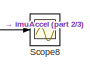
[diagram: root canvas - part 1/3, top center region]
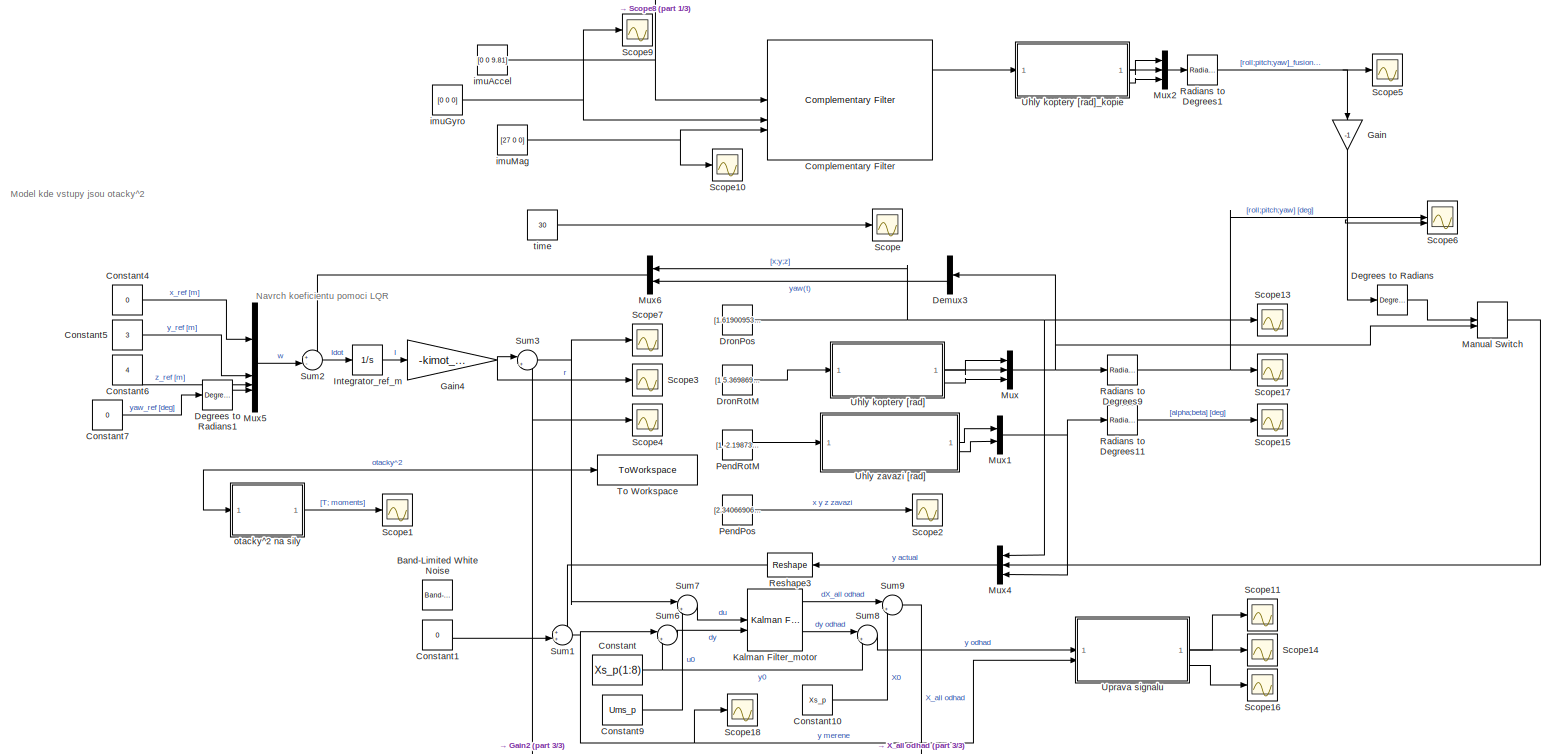
[diagram: root canvas - part 2/3, most of the canvas]
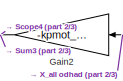
[diagram: root canvas - part 3/3, bottom center region]
MODEL slx_fc65d05edd1f
KIND model
CONFIG AbsTol = auto
CONFIG EnableMultiTasking = off
CONFIG FixedStep = 0.05
CONFIG MaxStep = auto
CONFIG MinStep = auto
CONFIG RelTol = 1e-3
CONFIG SampleTimeConstraint = Unconstrained
CONFIG SolverName = FixedStepAuto
CONFIG StartTime = 0.0
CONFIG StopTime = 30
BLOCK [Reference] Band-Limited White Noise  REF=simulink/Sources/Band-Limited
White Noise
  SourceBlock = simulink/Sources/Band-Limited\nWhite Noise
  SourceType = Band-Limited White Noise.
BLOCK [Reference] Complementary Filter  REF=mspfiltlib/Complementary Filter
  SourceBlock = mspfiltlib/Complementary Filter
  SourceType = fusion.internal.simulink.complementaryFilter
BLOCK [Constant] Constant
  Value = Xs_p(1:8)
BLOCK [Constant] Constant1
  Value = 0
BLOCK [Constant] Constant10
  Value = Xs_p
BLOCK [Constant] Constant4
  Value = 0
BLOCK [Constant] Constant5
  Value = 3
BLOCK [Constant] Constant6
  Value = 4
BLOCK [Constant] Constant7
  Value = 0
BLOCK [Constant] Constant9
  Value = Ums_p
BLOCK [Reference] Degrees to Radians  REF=simulink_extras/Transformations/Degrees to
Radians
  SourceBlock = simulink_extras/Transformations/Degrees to\nRadians
  SourceType = DegreesToRadians
BLOCK [Reference] Degrees to Radians1  REF=simulink_extras/Transformations/Degrees to
Radians
  SourceBlock = simulink_extras/Transformations/Degrees to\nRadians
  SourceType = DegreesToRadians
BLOCK [Demux] Demux3
  Outputs = 3
BLOCK [Constant] DronPos
  SampleTime = -1
  Value = [1.61900953117134e-14;2.99999981270685;3.99979077838286]
BLOCK [Constant] DronRotM
  SampleTime = -1
  Value = [1 5.3698699504956e-16 -1.69596969988384e-15;-5.36986885344199e-16 0.999999999999998 6.46859196049886e-08;1.69596973461933e-15 -6.46859196049886e-08 0.999999999999998]
BLOCK [Gain] Gain
  Gain = -1
  NameLocation = left
BLOCK [Gain] Gain2
  Gain = -kpmot_lqr
  Multiplication = Matrix(K*u)
BLOCK [Gain] Gain4
  Gain = -kimot_lqr
  Multiplication = Matrix(K*u)
BLOCK [Integrator] Integrator_ref_m
  InitialCondition = [1.54346369058432e-13;3.91010801614727e-12;-37.6161056972213;-9.51802609193794e-14]
BLOCK [Reference] Kalman Filter_motor  REF=ctrlSharedLib/Kalman Filter
  LibrarySourceBlock = cstblocks/State Estimation/Kalman Filter
  SourceBlock = ctrlSharedLib/Kalman Filter
  SourceType = ctrlKalmanFilter
BLOCK [ManualSwitch] Manual Switch
  CurrentSetting = 0
BLOCK [Mux] Mux
  DisplayOption = bar
  Inputs = 3
BLOCK [Mux] Mux1
  DisplayOption = bar
  Inputs = 2
BLOCK [Mux] Mux2
  DisplayOption = bar
  Inputs = 3
BLOCK [Mux] Mux4
  DisplayOption = bar
  Inputs = 3
BLOCK [Mux] Mux5
  DisplayOption = bar
BLOCK [Mux] Mux6
  DisplayOption = bar
  Inputs = 2
BLOCK [Constant] PendPos
  SampleTime = -1
  Value = [2.34066906770581e-14;2.99999974738107;2.99979077838286]
BLOCK [Constant] PendRotM
  SampleTime = -1
  Value = [1 -2.19873965405421e-16 -7.21659536534467e-15;2.19874436835105e-16 0.999999999999998 6.53257748572081e-08;7.21659535098121e-15 -6.53257748572081e-08 0.999999999999998]
BLOCK [Reference] Radians to Degrees1  REF=simulink_extras/Transformations/Radians
to Degrees
  SourceBlock = simulink_extras/Transformations/Radians\nto Degrees
  SourceType = RadiansToDegrees
BLOCK [Reference] Radians to Degrees11  REF=simulink_extras/Transformations/Radians
to Degrees
  SourceBlock = simulink_extras/Transformations/Radians\nto Degrees
  SourceType = RadiansToDegrees
BLOCK [Reference] Radians to Degrees9  REF=simulink_extras/Transformations/Radians
to Degrees
  SourceBlock = simulink_extras/Transformations/Radians\nto Degrees
  SourceType = RadiansToDegrees
BLOCK [Reshape] Reshape3
  OutputDimensionality = Customize
  OutputDimensions = [8,1]
BLOCK [Scope] Scope
  Floating = off
  NumInputPorts = 1
  ScopeSpecificationString = Simulink.scopes.TimeScopeBlockCfg('CurrentConfiguration', extmgr.ConfigurationSet(extmgr.Configuration('Core','General UI',true),extmgr.Configuration('Core','Source UI',true),extmgr.Configuration('Sources','WiredSimulink',true,'DataLoggingVariableName','ScopeData1'),extmgr.Configuration('Visuals','Time Domain',true,'SerializedDisplays',{struct('MinYLimReal','-0.44909','MaxYLimReal','0.69951','YLab...<+1525ch>
BLOCK [Scope] Scope1
  Floating = off
  NumInputPorts = 1
  ScopeSpecificationString = Simulink.scopes.TimeScopeBlockCfg('CurrentConfiguration', extmgr.ConfigurationSet(extmgr.Configuration('Core','General UI',true),extmgr.Configuration('Core','Source UI',true),extmgr.Configuration('Sources','WiredSimulink',true,'DataLoggingVariableName','ScopeData1'),extmgr.Configuration('Visuals','Time Domain',true,'SerializedDisplays',{struct('MinYLimReal','-3.78426','MaxYLimReal','33.9813','YLab...<+1586ch>
BLOCK [Scope] Scope10
  Floating = off
  NumInputPorts = 1
  ScopeSpecificationString = Simulink.scopes.TimeScopeBlockCfg('CurrentConfiguration', extmgr.ConfigurationSet(extmgr.Configuration('Core','General UI',true),extmgr.Configuration('Core','Source UI',true),extmgr.Configuration('Sources','WiredSimulink',true,'DataLoggingVariableName','ScopeData1'),extmgr.Configuration('Visuals','Time Domain',true,'SerializedDisplays',{struct('MinYLimReal','-3.375','MaxYLimReal','30.375','YLabelR...<+1495ch>
BLOCK [Scope] Scope11
  Floating = off
  NumInputPorts = 1
  ScopeSpecificationString = Simulink.scopes.TimeScopeBlockCfg('CurrentConfiguration', extmgr.ConfigurationSet(extmgr.Configuration('Core','General UI',true),extmgr.Configuration('Core','Source UI',true),extmgr.Configuration('Sources','WiredSimulink',true,'DataLoggingVariableName','ScopeData1'),extmgr.Configuration('Visuals','Time Domain',true,'SerializedDisplays',{struct('MinYLimReal','-0.50004','MaxYLimReal','4.49977','YLab...<+1790ch>
BLOCK [Scope] Scope13
  Floating = off
  NumInputPorts = 1
  ScopeSpecificationString = Simulink.scopes.TimeScopeBlockCfg('CurrentConfiguration', extmgr.ConfigurationSet(extmgr.Configuration('Core','General UI',true,'FigureColor',[1 1 1]),extmgr.Configuration('Core','Source UI',true),extmgr.Configuration('Sources','WiredSimulink',true,'DataLoggingVariableName','ScopeData2'),extmgr.Configuration('Visuals','Time Domain',true,'SerializedDisplays',{struct('MinYLimReal','-0.49997','MaxYLi...<+1879ch>
BLOCK [Scope] Scope14
  Floating = off
  NumInputPorts = 1
  ScopeSpecificationString = Simulink.scopes.TimeScopeBlockCfg('CurrentConfiguration', extmgr.ConfigurationSet(extmgr.Configuration('Core','General UI',true),extmgr.Configuration('Core','Source UI',true),extmgr.Configuration('Sources','WiredSimulink',true,'DataLoggingVariableName','ScopeData3'),extmgr.Configuration('Visuals','Time Domain',true,'SerializedDisplays',{struct('MinYLimReal','-10.3275','MaxYLimReal','7.36251','YLab...<+1779ch>
BLOCK [Scope] Scope15
  Floating = off
  NumInputPorts = 1
  ScopeSpecificationString = Simulink.scopes.TimeScopeBlockCfg('CurrentConfiguration', extmgr.ConfigurationSet(extmgr.Configuration('Core','General UI',true,'FigureColor',[1 1 1]),extmgr.Configuration('Core','Source UI',true),extmgr.Configuration('Sources','WiredSimulink',true,'DataLoggingVariableName','ScopeData4'),extmgr.Configuration('Visuals','Time Domain',true,'SerializedDisplays',{struct('MinYLimReal','-4.14198','MaxYLi...<+1889ch>
BLOCK [Scope] Scope16
  Floating = off
  NumInputPorts = 1
  ScopeSpecificationString = Simulink.scopes.TimeScopeBlockCfg('CurrentConfiguration', extmgr.ConfigurationSet(extmgr.Configuration('Core','General UI',true),extmgr.Configuration('Core','Source UI',true),extmgr.Configuration('Sources','WiredSimulink',true,'DataLoggingVariableName','ScopeData5'),extmgr.Configuration('Visuals','Time Domain',true,'SerializedDisplays',{struct('MinYLimReal','-5.12778','MaxYLimReal','7.11285','YLab...<+1672ch>
BLOCK [Scope] Scope17
  Floating = off
  NumInputPorts = 1
  ScopeSpecificationString = Simulink.scopes.TimeScopeBlockCfg('CurrentConfiguration', extmgr.ConfigurationSet(extmgr.Configuration('Core','General UI',true,'FigureColor',[1 1 1]),extmgr.Configuration('Core','Source UI',true),extmgr.Configuration('Sources','WiredSimulink',true,'DataLoggingVariableName','ScopeData6'),extmgr.Configuration('Visuals','Time Domain',true,'SerializedDisplays',{struct('MinYLimReal','-3.95864','MaxYLi...<+1924ch>
BLOCK [Scope] Scope18
  Floating = off
  NumInputPorts = 1
  ScopeSpecificationString = Simulink.scopes.TimeScopeBlockCfg('CurrentConfiguration', extmgr.ConfigurationSet(extmgr.Configuration('Core','General UI',true),extmgr.Configuration('Core','Source UI',true),extmgr.Configuration('Sources','WiredSimulink',true,'DataLoggingVariableName','ScopeData1'),extmgr.Configuration('Visuals','Time Domain',true,'SerializedDisplays',{struct('MinYLimReal','-11.22065','MaxYLimReal','3.49149','YLa...<+1626ch>
BLOCK [Scope] Scope2
  Floating = off
  NumInputPorts = 1
  ScopeSpecificationString = Simulink.scopes.TimeScopeBlockCfg('CurrentConfiguration', extmgr.ConfigurationSet(extmgr.Configuration('Core','General UI',true),extmgr.Configuration('Core','Source UI',true),extmgr.Configuration('Sources','WiredSimulink',true,'DataLoggingVariableName','ScopeData2'),extmgr.Configuration('Visuals','Time Domain',true,'SerializedDisplays',{struct('MinYLimReal','-0.50305','MaxYLimReal','2.5302','YLabe...<+1997ch>
BLOCK [Scope] Scope3
  Floating = off
  NumInputPorts = 1
  ScopeSpecificationString = Simulink.scopes.TimeScopeBlockCfg('CurrentConfiguration', extmgr.ConfigurationSet(extmgr.Configuration('Core','General UI',true),extmgr.Configuration('Core','Source UI',true),extmgr.Configuration('Sources','WiredSimulink',true,'DataLoggingVariableName','ScopeData1'),extmgr.Configuration('Visuals','Time Domain',true,'SerializedDisplays',{struct('MinYLimReal','3939.50271','MaxYLimReal','4075.14668',...<+1653ch>
BLOCK [Scope] Scope4
  Floating = off
  NumInputPorts = 1
  ScopeSpecificationString = Simulink.scopes.TimeScopeBlockCfg('CurrentConfiguration', extmgr.ConfigurationSet(extmgr.Configuration('Core','General UI',true),extmgr.Configuration('Core','Source UI',true),extmgr.Configuration('Sources','WiredSimulink',true,'DataLoggingVariableName','ScopeData1'),extmgr.Configuration('Visuals','Time Domain',true,'SerializedDisplays',{struct('MinYLimReal','-2917.25154','MaxYLimReal','3007.03814'...<+1532ch>
BLOCK [Scope] Scope5
  Floating = off
  NumInputPorts = 1
  ScopeSpecificationString = Simulink.scopes.TimeScopeBlockCfg('CurrentConfiguration', extmgr.ConfigurationSet(extmgr.Configuration('Core','General UI',true,'FigureColor',[1 1 1]),extmgr.Configuration('Core','Source UI',true),extmgr.Configuration('Sources','WiredSimulink',true,'DataLoggingVariableName','ScopeData1'),extmgr.Configuration('Visuals','Time Domain',true,'SerializedDisplays',{struct('MinYLimReal','-5.42609','MaxYLi...<+1945ch>
BLOCK [Scope] Scope6
  Floating = off
  NumInputPorts = 2
  ScopeSpecificationString = Simulink.scopes.TimeScopeBlockCfg('CurrentConfiguration', extmgr.ConfigurationSet(extmgr.Configuration('Core','General UI',true),extmgr.Configuration('Core','Source UI',true),extmgr.Configuration('Sources','WiredSimulink',true,'DataLoggingVariableName','ScopeData2'),extmgr.Configuration('Visuals','Time Domain',true,'SerializedDisplays',{struct('MinYLimReal','-3.78503','MaxYLimReal','2.86566','YLab...<+1761ch>
BLOCK [Scope] Scope7
  Floating = off
  NumInputPorts = 1
  ScopeSpecificationString = Simulink.scopes.TimeScopeBlockCfg('CurrentConfiguration', extmgr.ConfigurationSet(extmgr.Configuration('Core','General UI',true),extmgr.Configuration('Core','Source UI',true),extmgr.Configuration('Sources','WiredSimulink',true,'DataLoggingVariableName','ScopeData7'),extmgr.Configuration('Visuals','Time Domain',true,'SerializedDisplays',{struct('MinYLimReal','3150.40517','MaxYLimReal','3299.69541',...<+1795ch>
BLOCK [Scope] Scope8
  Floating = off
  NumInputPorts = 1
  ScopeSpecificationString = Simulink.scopes.TimeScopeBlockCfg('CurrentConfiguration', extmgr.ConfigurationSet(extmgr.Configuration('Core','General UI',true),extmgr.Configuration('Core','Source UI',true),extmgr.Configuration('Sources','WiredSimulink',true,'DataLoggingVariableName','ScopeData1'),extmgr.Configuration('Visuals','Time Domain',true,'SerializedDisplays',{struct('MinYLimReal','-1.32374','MaxYLimReal','11.33768','YLa...<+1488ch>
BLOCK [Scope] Scope9
  Floating = off
  NumInputPorts = 1
  ScopeSpecificationString = Simulink.scopes.TimeScopeBlockCfg('CurrentConfiguration', extmgr.ConfigurationSet(extmgr.Configuration('Core','General UI',true),extmgr.Configuration('Core','Source UI',true),extmgr.Configuration('Sources','WiredSimulink',true,'DataLoggingVariableName','ScopeData1'),extmgr.Configuration('Visuals','Time Domain',true,'SerializedDisplays',{struct('MinYLimReal','-0.16682','MaxYLimReal','0.12672','YLab...<+1506ch>
BLOCK [Sum] Sum1
  Inputs = ++|
BLOCK [Sum] Sum2
  Inputs = +-|
BLOCK [Sum] Sum3
  Inputs = |++
BLOCK [Sum] Sum6
  Inputs = |+-
BLOCK [Sum] Sum7
  Inputs = |+-
BLOCK [Sum] Sum8
  Inputs = |++
BLOCK [Sum] Sum9
  Inputs = |++
BLOCK [ToWorkspace] To Workspace
  FixptAsFi = on
  MaxDataPoints = inf
  SampleTime = -1
  VariableName = Rotor_RPS_square
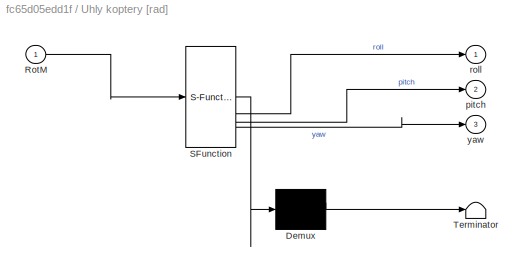
BLOCK [SubSystem] Uhly koptery [rad]
  ErrorFcn = Stateflow.Translate.translate
  PermitHierarchicalResolution = ExplicitOnly
  SFBlockType = MATLAB Function
  TreatAsAtomicUnit = on
BLOCK [Demux] Uhly koptery [rad]/ Demux 
  Outputs = 1
BLOCK [S-Function] Uhly koptery [rad]/ SFunction 
  EnableBusSupport = on
  FunctionName = sf_sfun
  PortCounts = [1 4]
  SFcnIsStateOwnerBlock = off
  SFunctionDeploymentMode = off
  Tag = Stateflow S-Function 3
BLOCK [Terminator] Uhly koptery [rad]/ Terminator 
BLOCK [Inport] Uhly koptery [rad]/RotM
BLOCK [Outport] Uhly koptery [rad]/pitch
  Port = 2
BLOCK [Outport] Uhly koptery [rad]/roll
BLOCK [Outport] Uhly koptery [rad]/yaw
  Port = 3
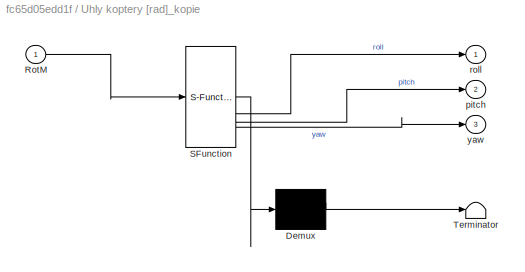
BLOCK [SubSystem] Uhly koptery [rad]_kopie
  ErrorFcn = Stateflow.Translate.translate
  PermitHierarchicalResolution = ExplicitOnly
  SFBlockType = MATLAB Function
  TreatAsAtomicUnit = on
BLOCK [Demux] Uhly koptery [rad]_kopie/ Demux 
  Outputs = 1
BLOCK [S-Function] Uhly koptery [rad]_kopie/ SFunction 
  EnableBusSupport = on
  FunctionName = sf_sfun
  PortCounts = [1 4]
  SFcnIsStateOwnerBlock = off
  SFunctionDeploymentMode = off
  Tag = Stateflow S-Function 2
BLOCK [Terminator] Uhly koptery [rad]_kopie/ Terminator 
BLOCK [Inport] Uhly koptery [rad]_kopie/RotM
BLOCK [Outport] Uhly koptery [rad]_kopie/pitch
  Port = 2
BLOCK [Outport] Uhly koptery [rad]_kopie/roll
BLOCK [Outport] Uhly koptery [rad]_kopie/yaw
  Port = 3
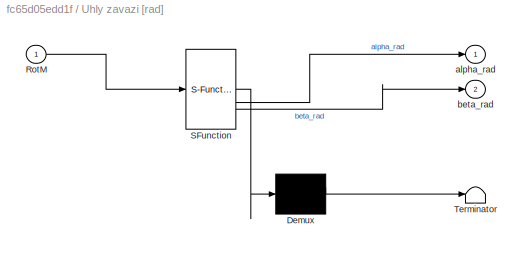
BLOCK [SubSystem] Uhly zavazi [rad]
  ErrorFcn = Stateflow.Translate.translate
  PermitHierarchicalResolution = ExplicitOnly
  SFBlockType = MATLAB Function
  TreatAsAtomicUnit = on
BLOCK [Demux] Uhly zavazi [rad]/ Demux 
  Outputs = 1
BLOCK [S-Function] Uhly zavazi [rad]/ SFunction 
  EnableBusSupport = on
  FunctionName = sf_sfun
  PortCounts = [1 3]
  SFcnIsStateOwnerBlock = off
  SFunctionDeploymentMode = off
  Tag = Stateflow S-Function 1
BLOCK [Terminator] Uhly zavazi [rad]/ Terminator 
BLOCK [Inport] Uhly zavazi [rad]/RotM
BLOCK [Outport] Uhly zavazi [rad]/alpha_rad
BLOCK [Outport] Uhly zavazi [rad]/beta_rad
  Port = 2
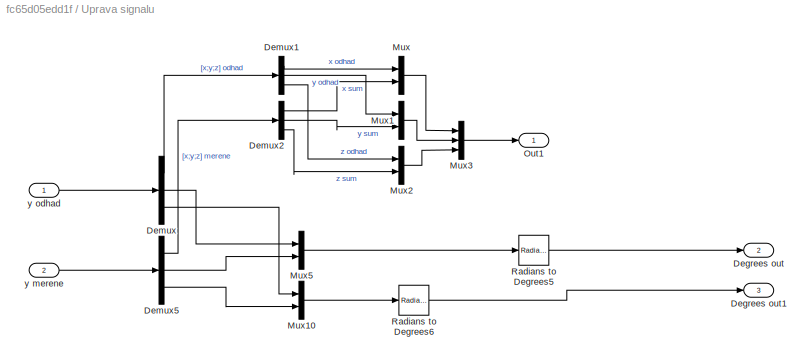
BLOCK [SubSystem] Uprava signalu
BLOCK [Outport] Uprava signalu/Degrees out
  Port = 2
BLOCK [Outport] Uprava signalu/Degrees out1
  Port = 3
BLOCK [Demux] Uprava signalu/Demux
  Outputs = 3
BLOCK [Demux] Uprava signalu/Demux1
  Outputs = 3
BLOCK [Demux] Uprava signalu/Demux2
  Outputs = 3
BLOCK [Demux] Uprava signalu/Demux5
  Outputs = 3
BLOCK [Mux] Uprava signalu/Mux
  DisplayOption = bar
  Inputs = 2
BLOCK [Mux] Uprava signalu/Mux1
  DisplayOption = bar
  Inputs = 2
BLOCK [Mux] Uprava signalu/Mux10
  DisplayOption = bar
  Inputs = 2
BLOCK [Mux] Uprava signalu/Mux2
  DisplayOption = bar
  Inputs = 2
BLOCK [Mux] Uprava signalu/Mux3
  DisplayOption = bar
  Inputs = 3
BLOCK [Mux] Uprava signalu/Mux5
  DisplayOption = bar
  Inputs = 2
BLOCK [Outport] Uprava signalu/Out1
BLOCK [Reference] Uprava signalu/Radians to Degrees5  REF=simulink_extras/Transformations/Radians
to Degrees
  SourceBlock = simulink_extras/Transformations/Radians\nto Degrees
  SourceType = RadiansToDegrees
BLOCK [Reference] Uprava signalu/Radians to Degrees6  REF=simulink_extras/Transformations/Radians
to Degrees
  SourceBlock = simulink_extras/Transformations/Radians\nto Degrees
  SourceType = RadiansToDegrees
BLOCK [Inport] Uprava signalu/y merene
  Port = 2
BLOCK [Inport] Uprava signalu/y odhad
BLOCK [Constant] imuAccel
  SampleTime = -1
  Value = [0 0 9.81]
  VectorParams1D = off
BLOCK [Constant] imuGyro
  SampleTime = -1
  Value = [0 0 0]
  VectorParams1D = off
BLOCK [Constant] imuMag
  SampleTime = -1
  Value = [27 0 0]
  VectorParams1D = off
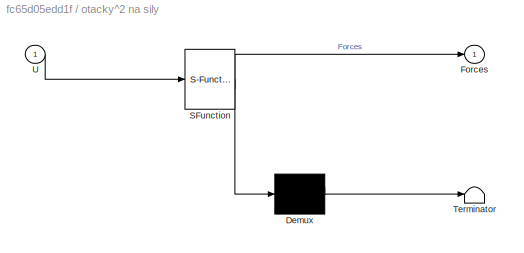
BLOCK [SubSystem] otacky^2 na sily
  ErrorFcn = Stateflow.Translate.translate
  PermitHierarchicalResolution = ExplicitOnly
  SFBlockType = MATLAB Function
  TreatAsAtomicUnit = on
BLOCK [Demux] otacky^2 na sily/ Demux 
  Outputs = 1
BLOCK [S-Function] otacky^2 na sily/ SFunction 
  EnableBusSupport = on
  FunctionName = sf_sfun
  Parameters = b_moment,k_thrust,l
  PortCounts = [1 2]
  SFcnIsStateOwnerBlock = off
  SFunctionDeploymentMode = off
  Tag = Stateflow S-Function 14
BLOCK [Terminator] otacky^2 na sily/ Terminator 
BLOCK [Outport] otacky^2 na sily/Forces
BLOCK [Inport] otacky^2 na sily/U
BLOCK [Constant] time
  SampleTime = -1
  Value = 30
ANNOTATION (root): Navrch koeficientu pomoci LQR
ANNOTATION (root): Model kde vstupy jsou otacky^2
LINE Complementary Filter:1 -> Uhly koptery [rad]_kopie:1
LINE Constant10:1 -> Sum9:2
LINE Constant1:1 -> Sum1:2
LINE Constant4:1 -> Mux5:1
LINE Constant5:1 -> Mux5:2
LINE Constant6:1 -> Mux5:3
LINE Constant7:1 -> Degrees to Radians1:1
LINE Constant9:1 -> Sum7:2
NET Constant:1 -> Sum6:2, Sum8:2
LINE Degrees to Radians1:1 -> Mux5:4
LINE Degrees to Radians:1 -> Manual Switch:1
LINE Demux3:3 -> Mux6:2
NET DronPos:1 -> Mux4:1, Mux6:1, Scope13:1
LINE DronRotM:1 -> Uhly koptery [rad]:1
NET Gain2:1 -> Scope4:1, Sum3:2
NET Gain4:1 -> Scope3:1, Sum3:1
NET Gain:1 -> Degrees to Radians:1, Scope6:2
LINE Integrator_ref_m:1 -> Gain4:1
LINE Kalman Filter_motor:1 -> Sum9:1
LINE Kalman Filter_motor:2 -> Sum8:1
LINE Manual Switch:1 -> Mux4:2
NET Mux1:1 -> Mux4:3, Radians to Degrees11:1
LINE Mux2:1 -> Radians to Degrees1:1
LINE Mux4:1 -> Reshape3:1
LINE Mux5:1 -> Sum2:2
LINE Mux6:1 -> Sum2:1
NET Mux:1 -> Demux3:1, Manual Switch:2, Radians to Degrees9:1
LINE PendPos:1 -> Scope2:1
LINE PendRotM:1 -> Uhly zavazi [rad]:1
LINE Radians to Degrees11:1 -> Scope15:1
NET Radians to Degrees1:1 -> Gain:1, Scope5:1
NET Radians to Degrees9:1 -> Scope17:1, Scope6:1
LINE Reshape3:1 -> Sum1:1
NET Sum1:1 -> Scope18:1, Sum6:1, Uprava signalu:2
LINE Sum2:1 -> Integrator_ref_m:1
NET Sum3:1 -> Scope7:1, Sum7:1, To Workspace:1, otacky^2 na sily:1
LINE Sum6:1 -> Kalman Filter_motor:2
LINE Sum7:1 -> Kalman Filter_motor:1
LINE Sum8:1 -> Uprava signalu:1
LINE Sum9:1 -> Gain2:1
LINE Uhly koptery [rad]:1 -> Mux:1
LINE Uhly koptery [rad]:2 -> Mux:2
LINE Uhly koptery [rad]:3 -> Mux:3
LINE Uhly koptery [rad]_kopie:1 -> Mux2:1
LINE Uhly koptery [rad]_kopie:2 -> Mux2:2
LINE Uhly koptery [rad]_kopie:3 -> Mux2:3
LINE Uhly zavazi [rad]:1 -> Mux1:1
LINE Uhly zavazi [rad]:2 -> Mux1:2
LINE Uprava signalu/Demux1:1 -> Uprava signalu/Mux:1
LINE Uprava signalu/Demux1:2 -> Uprava signalu/Mux1:1
LINE Uprava signalu/Demux1:3 -> Uprava signalu/Mux2:1
LINE Uprava signalu/Demux2:1 -> Uprava signalu/Mux:2
LINE Uprava signalu/Demux2:2 -> Uprava signalu/Mux1:2
LINE Uprava signalu/Demux2:3 -> Uprava signalu/Mux2:2
LINE Uprava signalu/Demux5:1 -> Uprava signalu/Demux2:1
LINE Uprava signalu/Demux5:2 -> Uprava signalu/Mux5:2
LINE Uprava signalu/Demux5:3 -> Uprava signalu/Mux10:2
LINE Uprava signalu/Demux:1 -> Uprava signalu/Demux1:1
LINE Uprava signalu/Demux:2 -> Uprava signalu/Mux5:1
LINE Uprava signalu/Demux:3 -> Uprava signalu/Mux10:1
LINE Uprava signalu/Mux10:1 -> Uprava signalu/Radians to Degrees6:1
LINE Uprava signalu/Mux1:1 -> Uprava signalu/Mux3:2
LINE Uprava signalu/Mux2:1 -> Uprava signalu/Mux3:3
LINE Uprava signalu/Mux3:1 -> Uprava signalu/Out1:1
LINE Uprava signalu/Mux5:1 -> Uprava signalu/Radians to Degrees5:1
LINE Uprava signalu/Mux:1 -> Uprava signalu/Mux3:1
LINE Uprava signalu/Radians to Degrees5:1 -> Uprava signalu/Degrees out:1
LINE Uprava signalu/Radians to Degrees6:1 -> Uprava signalu/Degrees out1:1
LINE Uprava signalu/y merene:1 -> Uprava signalu/Demux5:1
LINE Uprava signalu/y odhad:1 -> Uprava signalu/Demux:1
LINE Uprava signalu:1 -> Scope11:1
LINE Uprava signalu:2 -> Scope14:1
LINE Uprava signalu:3 -> Scope16:1
NET imuAccel:1 -> Complementary Filter:1, Scope8:1
NET imuGyro:1 -> Complementary Filter:2, Scope9:1
NET imuMag:1 -> Complementary Filter:3, Scope10:1
LINE otacky^2 na sily:1 -> Scope1:1
LINE time:1 -> Scope:1
note: NET lines group one-source signal fan-out (src -> all destinations, sorted); 1:1 wires keep LINE
CHART Uhly zavazi [rad] states=1 transitions=1
  STATE_LABEL 'eML_blk_kernel()'
  STATE_LABEL 'SCRIPT:\nfunction [alpha_rad, beta_rad] = pend_orient(RotM)\n% Расчет углов альфа и бета маятника\n\n% Вектор маятника\nrope_vector = RotM * [0; 0; -1];\n\n% Расчет угла альфа\nrope_vector_xz = rope_vector([1, 3]); % Компоненты x и z\nz_axis = [0; -1];\ncos_alpha = dot(rope_vector_xz, z_axis) / (norm(rope_vector_xz) * norm(z_axis));\ncos_alpha = max(-1, min(1, cos_alpha)); % Ограничиваем в диапазоне [-1, 1]\n...<+530ch>'
CHART Uhly koptery [rad]_kopie states=1 transitions=1
  STATE_LABEL 'eML_blk_kernel()'
  STATE_LABEL "SCRIPT:\nfunction [roll, pitch, yaw] = quad_attitude(RotM)\n% matice rotace koptery z Python, vuci svetu!!!\n% rotm2eul prevadi na Eulerove uhly\nradians = rotm2eul(RotM, 'ZYX'); % pouzivam poradi ZYX\n\n% roll = kolem x, pitch = kolem y, yaw = kolem z\nyaw = radians(1);\npitch = radians(2);\nroll = radians(3);\nend\n"
CHART Uhly koptery [rad] states=1 transitions=1
  STATE_LABEL 'eML_blk_kernel()'
  STATE_LABEL "SCRIPT:\nfunction [roll, pitch, yaw] = quad_attitude(RotM)\n% matice rotace koptery z Python, vuci svetu!!!\n% rotm2eul prevadi na Eulerove uhly\nradians = rotm2eul(RotM, 'ZYX'); % pouzivam poradi ZYX\n\n% roll = kolem x, pitch = kolem y, yaw = kolem z\nyaw = radians(1);\npitch = radians(2);\nroll = radians(3);\nend\n"
CHART otacky^2 na sily states=1 transitions=1
  STATE_LABEL 'eML_blk_kernel()'
  STATE_LABEL 'SCRIPT:\nfunction Forces = fcn(U, l, b_moment, k_thrust)\nU1 = U(1);\nU2 = U(2);\nU3 = U(3);\nU4 = U(4);\n\nT = k_thrust*(U1 + U2 + U3 + U4);\nTau_phi = k_thrust*l*(U1 - U2 - U3 + U4);\nTau_theta = -k_thrust*l*(U1 + U2 - U3 - U4);\nTau_psi = b_moment*(U1 - U2 + U3 - U4);\n\nForces = [T; Tau_phi; Tau_theta; Tau_psi];\n'
CHART  states=0 transitions=0
CHART  states=0 transitions=0
CHART  states=0 transitions=0
CHART  states=0 transitions=0
